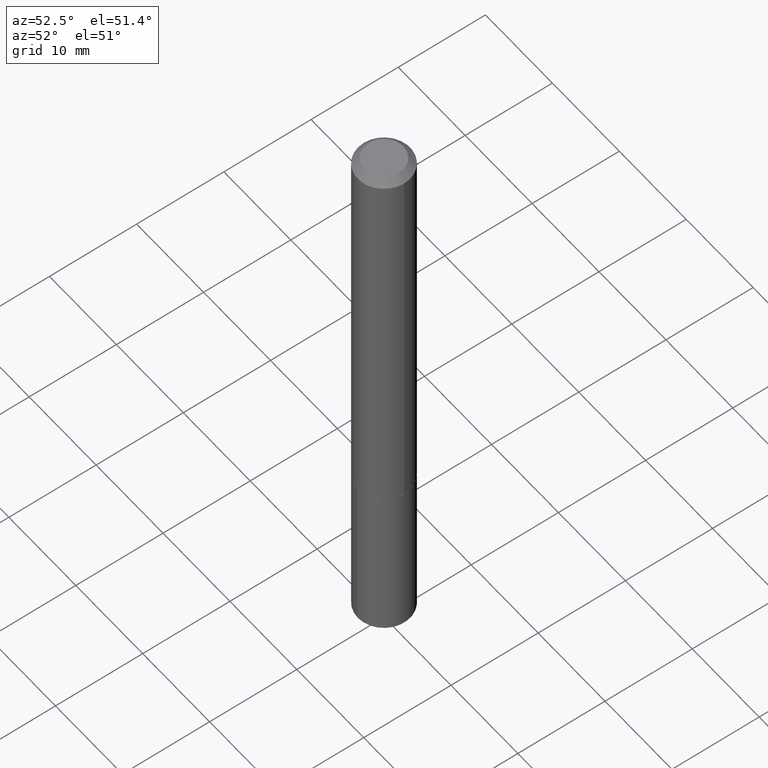
[diagram: clean part render]
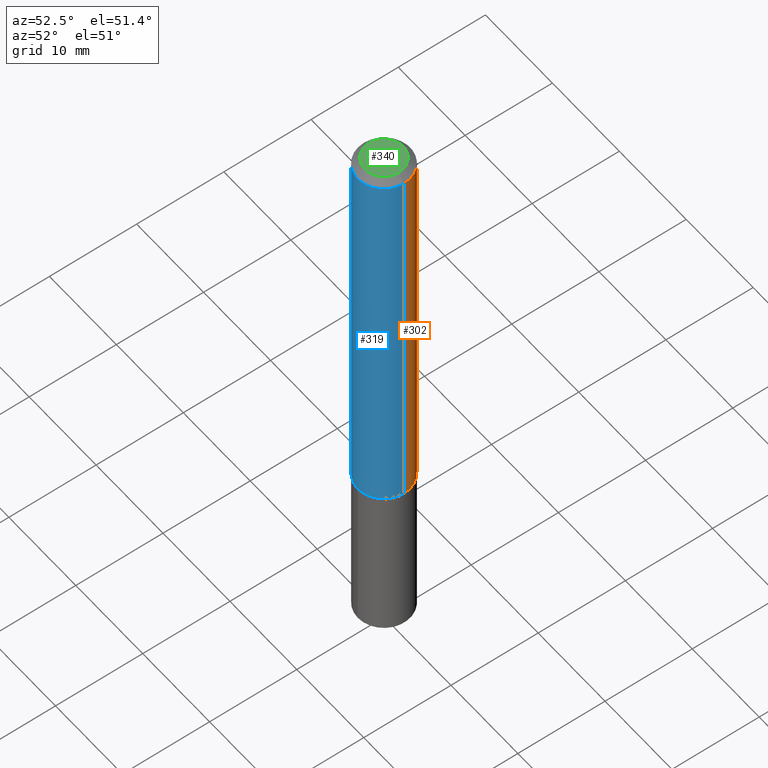
[diagram: same view with three faces highlighted in distinct colors, each labeled with its STEP entity id]
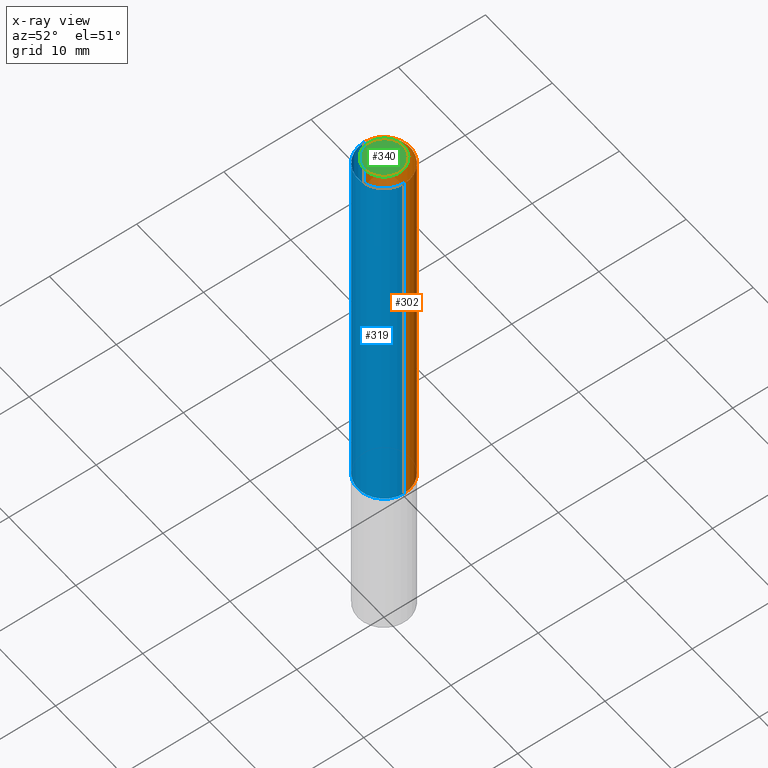
[diagram: x-ray of the same camera — body ghosted, the three highlighted faces saturated]
A machine part, auxiliary view with three faces highlighted in distinct colors.
The next image is the same camera in x-ray (body ghosted, the three faces saturated) — at least one of them is partly hidden behind the body in this view.
Their STEP definitions:

[orange] entity #302 — the highlighted cylindrical surface (edge-blend (fillet) strip) has radius 2.9997 mm, axis along (-0, 0, 1).
#3 = CYLINDRICAL_SURFACE ( 'NONE', #261, 0.1181000000000001215 ) ;
#7 = EDGE_CURVE ( 'NONE', #353, #266, #88, .T. ) ;
#12 = AXIS2_PLACEMENT_3D ( 'NONE', #96, #129, #132 ) ;
#25 = ORIENTED_EDGE ( 'NONE', *, *, #324, .F. ) ;
#27 = ORIENTED_EDGE ( 'NONE', *, *, #181, .T. ) ;
#28 = DIRECTION ( 'NONE',  ( -2.445468806185136597E-29, 3.491481338843145583E-15, 1.000000000000000000 ) ) ;
#59 = CARTESIAN_POINT ( 'NONE',  ( 7.642090019328603538E-31, -1.091087918388490390E-16, -0.03125000000000021511 ) ) ;
#78 = AXIS2_PLACEMENT_3D ( 'NONE', #59, #28, #146 ) ;
#84 = DIRECTION ( 'NONE',  ( -2.445468806185136877E-29, 3.491481338843145188E-15, 1.000000000000000000 ) ) ;
#88 = CIRCLE ( 'NONE', #12, 0.1181000000000002326 ) ;
#95 = VECTOR ( 'NONE', #326, 39.37007874015748143 ) ;
#96 = CARTESIAN_POINT ( 'NONE',  ( 4.427521273598189436E-29, -6.321326963975514491E-15, -1.810499999999999998 ) ) ;
#115 = DIRECTION ( 'NONE',  ( -2.445468806185136597E-29, 3.491481338843145583E-15, 1.000000000000000000 ) ) ;
#119 = CARTESIAN_POINT ( 'NONE',  ( 0.1180999999999999966, -9.337966840735971660E-16, -0.03125000000000021511 ) ) ;
#129 = DIRECTION ( 'NONE',  ( -2.445468806185136597E-29, 3.491481338843145583E-15, 1.000000000000000000 ) ) ;
#132 = DIRECTION ( 'NONE',  ( 1.000000000000000000, -6.982962677686266711E-15, 0.000000000000000000 ) ) ;
#146 = DIRECTION ( 'NONE',  ( 1.000000000000000000, -6.982962677686266711E-15, 0.000000000000000000 ) ) ;
#178 = CARTESIAN_POINT ( 'NONE',  ( -0.1181000000000001215, 8.391509709326791832E-16, -5.809262341591049389E-30 ) ) ;
#180 = CARTESIAN_POINT ( 'NONE',  ( 0.1181000000000001215, -8.246878922347489529E-16, 5.758764772215006046E-30 ) ) ;
#181 = EDGE_CURVE ( 'NONE', #266, #333, #386, .T. ) ;
#185 = DIRECTION ( 'NONE',  ( 1.000000000000000000, -6.982962677686266711E-15, 4.876176775795935793E-29 ) ) ;
#188 = VECTOR ( 'NONE', #84, 39.37007874015748143 ) ;
#213 = FACE_OUTER_BOUND ( 'NONE', #287, .T. ) ;
#254 = CARTESIAN_POINT ( 'NONE',  ( 0.1181000000000002326, -7.146014856210264332E-15, -1.810499999999999998 ) ) ;
#261 = AXIS2_PLACEMENT_3D ( 'NONE', #325, #115, #185 ) ;
#262 = EDGE_CURVE ( 'NONE', #353, #338, #362, .T. ) ;
#264 = CARTESIAN_POINT ( 'NONE',  ( -0.1180999999999999966, -2.376066906974501232E-15, -0.03125000000000021511 ) ) ;
#265 = CARTESIAN_POINT ( 'NONE',  ( -0.1181000000000002326, -5.482175993042835505E-15, -1.810499999999999998 ) ) ;
#266 = VERTEX_POINT ( 'NONE', #265 ) ;
#287 = EDGE_LOOP ( 'NONE', ( #376, #27, #25, #317 ) ) ;
#302 = ADVANCED_FACE ( 'NONE', ( #213 ), #3, .T. ) ;
#317 = ORIENTED_EDGE ( 'NONE', *, *, #262, .F. ) ;
#324 = EDGE_CURVE ( 'NONE', #338, #333, #375, .T. ) ;
#325 = CARTESIAN_POINT ( 'NONE',  ( 0.000000000000000000, 0.000000000000000000, 0.000000000000000000 ) ) ;
#326 = DIRECTION ( 'NONE',  ( -2.445468806185136877E-29, 3.491481338843145188E-15, 1.000000000000000000 ) ) ;
#333 = VERTEX_POINT ( 'NONE', #264 ) ;
#338 = VERTEX_POINT ( 'NONE', #119 ) ;
#353 = VERTEX_POINT ( 'NONE', #254 ) ;
#362 = LINE ( 'NONE', #180, #188 ) ;
#375 = CIRCLE ( 'NONE', #78, 0.1180999999999999966 ) ;
#376 = ORIENTED_EDGE ( 'NONE', *, *, #7, .T. ) ;
#386 = LINE ( 'NONE', #178, #95 ) ;

[blue] entity #319 — the highlighted cylindrical surface (edge-blend (fillet) strip) has radius 2.9997 mm, axis along (-0, 0, 1).
#24 = CIRCLE ( 'NONE', #62, 0.1180999999999999966 ) ;
#38 = EDGE_LOOP ( 'NONE', ( #93, #125, #195, #212 ) ) ;
#49 = EDGE_CURVE ( 'NONE', #333, #338, #24, .T. ) ;
#62 = AXIS2_PLACEMENT_3D ( 'NONE', #251, #219, #306 ) ;
#84 = DIRECTION ( 'NONE',  ( -2.445468806185136877E-29, 3.491481338843145188E-15, 1.000000000000000000 ) ) ;
#93 = ORIENTED_EDGE ( 'NONE', *, *, #181, .F. ) ;
#95 = VECTOR ( 'NONE', #326, 39.37007874015748143 ) ;
#117 = AXIS2_PLACEMENT_3D ( 'NONE', #316, #173, #210 ) ;
#119 = CARTESIAN_POINT ( 'NONE',  ( 0.1180999999999999966, -9.337966840735971660E-16, -0.03125000000000021511 ) ) ;
#125 = ORIENTED_EDGE ( 'NONE', *, *, #136, .T. ) ;
#136 = EDGE_CURVE ( 'NONE', #266, #353, #255, .T. ) ;
#154 = CYLINDRICAL_SURFACE ( 'NONE', #366, 0.1181000000000001215 ) ;
#173 = DIRECTION ( 'NONE',  ( -2.445468806185136597E-29, 3.491481338843145583E-15, 1.000000000000000000 ) ) ;
#178 = CARTESIAN_POINT ( 'NONE',  ( -0.1181000000000001215, 8.391509709326791832E-16, -5.809262341591049389E-30 ) ) ;
#180 = CARTESIAN_POINT ( 'NONE',  ( 0.1181000000000001215, -8.246878922347489529E-16, 5.758764772215006046E-30 ) ) ;
#181 = EDGE_CURVE ( 'NONE', #266, #333, #386, .T. ) ;
#188 = VECTOR ( 'NONE', #84, 39.37007874015748143 ) ;
#195 = ORIENTED_EDGE ( 'NONE', *, *, #262, .T. ) ;
#205 = FACE_OUTER_BOUND ( 'NONE', #38, .T. ) ;
#210 = DIRECTION ( 'NONE',  ( 1.000000000000000000, -6.982962677686266711E-15, 0.000000000000000000 ) ) ;
#212 = ORIENTED_EDGE ( 'NONE', *, *, #49, .F. ) ;
#219 = DIRECTION ( 'NONE',  ( -2.445468806185136597E-29, 3.491481338843145583E-15, 1.000000000000000000 ) ) ;
#251 = CARTESIAN_POINT ( 'NONE',  ( 7.642090019328603538E-31, -1.091087918388490390E-16, -0.03125000000000021511 ) ) ;
#254 = CARTESIAN_POINT ( 'NONE',  ( 0.1181000000000002326, -7.146014856210264332E-15, -1.810499999999999998 ) ) ;
#255 = CIRCLE ( 'NONE', #117, 0.1181000000000002326 ) ;
#262 = EDGE_CURVE ( 'NONE', #353, #338, #362, .T. ) ;
#264 = CARTESIAN_POINT ( 'NONE',  ( -0.1180999999999999966, -2.376066906974501232E-15, -0.03125000000000021511 ) ) ;
#265 = CARTESIAN_POINT ( 'NONE',  ( -0.1181000000000002326, -5.482175993042835505E-15, -1.810499999999999998 ) ) ;
#266 = VERTEX_POINT ( 'NONE', #265 ) ;
#272 = DIRECTION ( 'NONE',  ( -2.445468806185136597E-29, 3.491481338843145583E-15, 1.000000000000000000 ) ) ;
#296 = CARTESIAN_POINT ( 'NONE',  ( 0.000000000000000000, 0.000000000000000000, 0.000000000000000000 ) ) ;
#306 = DIRECTION ( 'NONE',  ( 1.000000000000000000, -6.982962677686266711E-15, 0.000000000000000000 ) ) ;
#316 = CARTESIAN_POINT ( 'NONE',  ( 4.427521273598189436E-29, -6.321326963975514491E-15, -1.810499999999999998 ) ) ;
#319 = ADVANCED_FACE ( 'NONE', ( #205 ), #154, .T. ) ;
#320 = DIRECTION ( 'NONE',  ( 1.000000000000000000, -6.982962677686266711E-15, 4.876176775795935793E-29 ) ) ;
#326 = DIRECTION ( 'NONE',  ( -2.445468806185136877E-29, 3.491481338843145188E-15, 1.000000000000000000 ) ) ;
#333 = VERTEX_POINT ( 'NONE', #264 ) ;
#338 = VERTEX_POINT ( 'NONE', #119 ) ;
#353 = VERTEX_POINT ( 'NONE', #254 ) ;
#362 = LINE ( 'NONE', #180, #188 ) ;
#366 = AXIS2_PLACEMENT_3D ( 'NONE', #296, #272, #320 ) ;
#386 = LINE ( 'NONE', #178, #95 ) ;

[green] entity #340 — the highlighted planar face has unit normal (0, -0, -1).
#42 = CIRCLE ( 'NONE', #237, 0.08684999999999999665 ) ;
#66 = DIRECTION ( 'NONE',  ( 1.000000000000000000, -6.982962677686266711E-15, 4.876232708448512900E-29 ) ) ;
#67 = DIRECTION ( 'NONE',  ( 1.000000000000000000, -6.982962677686266711E-15, 4.876232708448512900E-29 ) ) ;
#99 = CARTESIAN_POINT ( 'NONE',  ( 1.474956506360344439E-47, -2.105846987104261168E-33, -6.031385485800719294E-19 ) ) ;
#102 = ORIENTED_EDGE ( 'NONE', *, *, #207, .T. ) ;
#126 = DIRECTION ( 'NONE',  ( 2.438088387897960049E-29, -3.491481338843145188E-15, -1.000000000000000000 ) ) ;
#184 = EDGE_LOOP ( 'NONE', ( #102, #209 ) ) ;
#207 = EDGE_CURVE ( 'NONE', #250, #298, #239, .T. ) ;
#208 = CARTESIAN_POINT ( 'NONE',  ( 0.08684999999999999665, -7.575839282410621061E-16, -1.206277097155374871E-18 ) ) ;
#209 = ORIENTED_EDGE ( 'NONE', *, *, #385, .T. ) ;
#237 = AXIS2_PLACEMENT_3D ( 'NONE', #252, #368, #67 ) ;
#239 = CIRCLE ( 'NONE', #347, 0.08684999999999999665 ) ;
#250 = VERTEX_POINT ( 'NONE', #299 ) ;
#252 = CARTESIAN_POINT ( 'NONE',  ( 2.949913012720688878E-47, -4.211693974208522336E-33, -1.206277097160143859E-18 ) ) ;
#269 = CARTESIAN_POINT ( 'NONE',  ( 2.949913012720688878E-47, -4.211693974208522336E-33, -1.206277097160143859E-18 ) ) ;
#298 = VERTEX_POINT ( 'NONE', #208 ) ;
#299 = CARTESIAN_POINT ( 'NONE',  ( -0.08684999999999999665, 6.610247044764755977E-16, -1.206277097164575809E-18 ) ) ;
#321 = FACE_OUTER_BOUND ( 'NONE', #184, .T. ) ;
#340 = ADVANCED_FACE ( 'NONE', ( #321 ), #357, .F. ) ;
#347 = AXIS2_PLACEMENT_3D ( 'NONE', #269, #359, #66 ) ;
#351 = AXIS2_PLACEMENT_3D ( 'NONE', #99, #126, #371 ) ;
#357 = PLANE ( 'NONE',  #351 ) ;
#359 = DIRECTION ( 'NONE',  ( -2.445468806185136597E-29, 3.491481338843145583E-15, 1.000000000000000000 ) ) ;
#368 = DIRECTION ( 'NONE',  ( -2.445468806185136597E-29, 3.491481338843145583E-15, 1.000000000000000000 ) ) ;
#371 = DIRECTION ( 'NONE',  ( -1.000000000000000000, 6.982962677686265922E-15, -4.876176775795935793E-29 ) ) ;
#385 = EDGE_CURVE ( 'NONE', #298, #250, #42, .T. ) ;